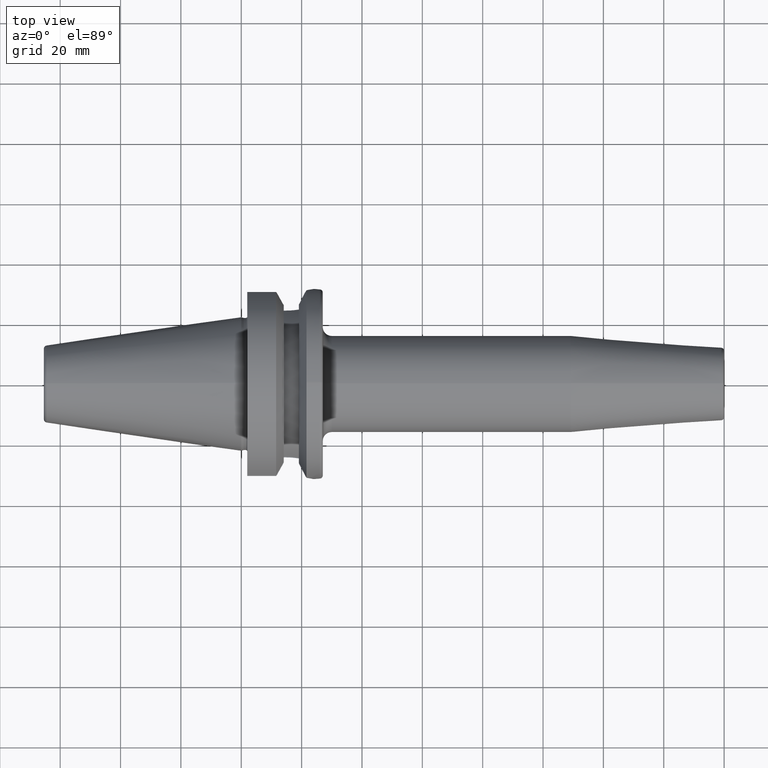
[diagram: clean part render]
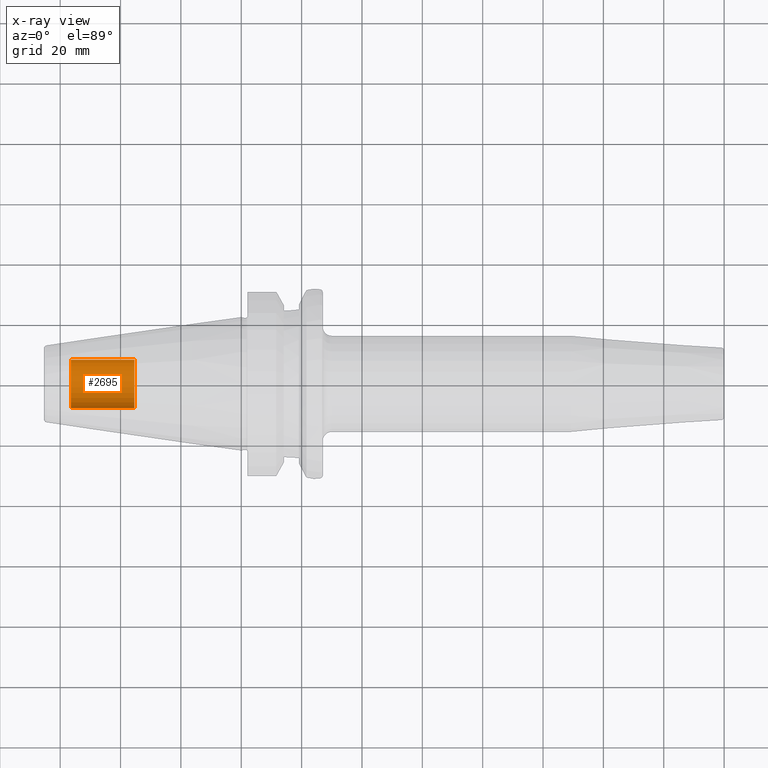
[diagram: x-ray — body ghosted, one internal face saturated and labeled with its STEP entity id]
A machine part, top view, then the same camera in x-ray: the body is ghosted and one INTERNAL B-rep face — a face not visible from any outside direction — is saturated and labeled: STEP entity #2695.
In plain terms, the highlighted cylindrical surface (edge-blend (fillet) strip) has radius 8 mm, axis along (-1, 0, 0).
Its self-contained STEP definition (entity closure, byte-faithful):
#2630=CARTESIAN_POINT('',(-5.64E1,0.E0,0.E0));
#2631=DIRECTION('',(1.E0,0.E0,0.E0));
#2632=DIRECTION('',(0.E0,-1.E0,0.E0));
#2633=AXIS2_PLACEMENT_3D('',#2630,#2631,#2632);
#2640=DIRECTION('',(1.E0,0.E0,0.E0));
#2641=VECTOR('',#2640,2.1E1);
#2642=CARTESIAN_POINT('',(-5.64E1,-8.E0,0.E0));
#2643=LINE('',#2642,#2641);
#2644=DIRECTION('',(1.E0,0.E0,0.E0));
#2645=VECTOR('',#2644,2.1E1);
#2646=CARTESIAN_POINT('',(-5.64E1,8.E0,0.E0));
#2647=LINE('',#2646,#2645);
#2653=CARTESIAN_POINT('',(-3.54E1,0.E0,0.E0));
#2654=DIRECTION('',(-1.E0,0.E0,0.E0));
#2655=DIRECTION('',(0.E0,1.E0,0.E0));
#2656=AXIS2_PLACEMENT_3D('',#2653,#2654,#2655);
#2668=CARTESIAN_POINT('',(-3.54E1,8.E0,0.E0));
#2669=CARTESIAN_POINT('',(-3.54E1,-8.E0,0.E0));
#2670=VERTEX_POINT('',#2668);
#2671=VERTEX_POINT('',#2669);
#2672=CARTESIAN_POINT('',(-5.64E1,8.E0,0.E0));
#2673=CARTESIAN_POINT('',(-5.64E1,-8.E0,0.E0));
#2674=VERTEX_POINT('',#2672);
#2675=VERTEX_POINT('',#2673);
#2680=CARTESIAN_POINT('',(-1.373367445015E1,0.E0,0.E0));
#2681=DIRECTION('',(-1.E0,0.E0,0.E0));
#2682=DIRECTION('',(0.E0,1.E0,0.E0));
#2683=AXIS2_PLACEMENT_3D('',#2680,#2681,#2682);
#2684=CYLINDRICAL_SURFACE('',#2683,8.E0);
#2686=ORIENTED_EDGE('',*,*,#2685,.T.);
#2688=ORIENTED_EDGE('',*,*,#2687,.T.);
#2690=ORIENTED_EDGE('',*,*,#2689,.T.);
#2692=ORIENTED_EDGE('',*,*,#2691,.F.);
#2693=EDGE_LOOP('',(#2686,#2688,#2690,#2692));
#2694=FACE_OUTER_BOUND('',#2693,.F.);
#2695=ADVANCED_FACE('',(#2694),#2684,.F.);
#2634=CIRCLE('',#2633,8.E0);
#2657=CIRCLE('',#2656,8.E0);
#2685=EDGE_CURVE('',#2675,#2674,#2634,.T.);
#2687=EDGE_CURVE('',#2674,#2670,#2647,.T.);
#2689=EDGE_CURVE('',#2670,#2671,#2657,.T.);
#2691=EDGE_CURVE('',#2675,#2671,#2643,.T.);